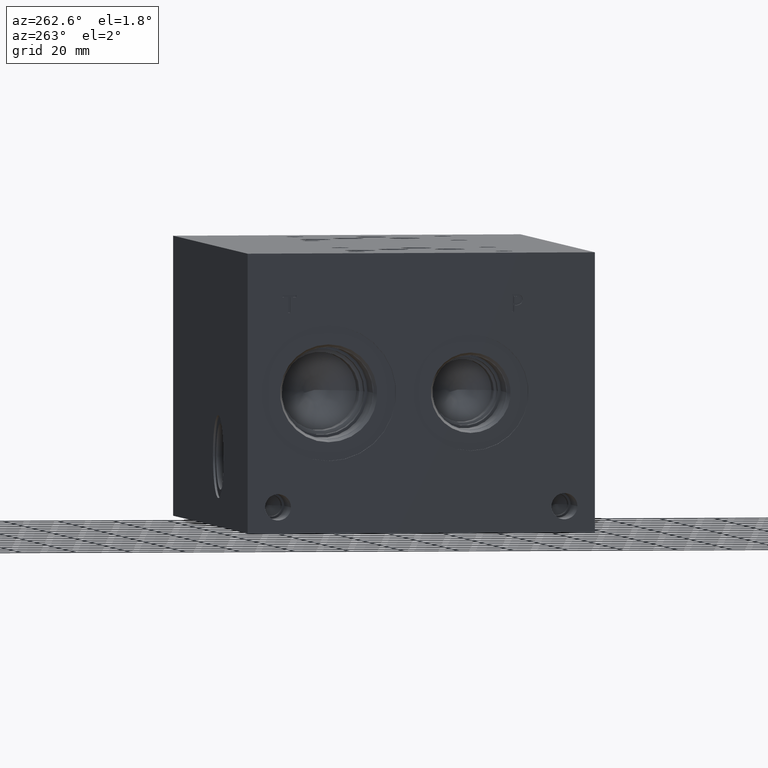
[diagram: clean part render]
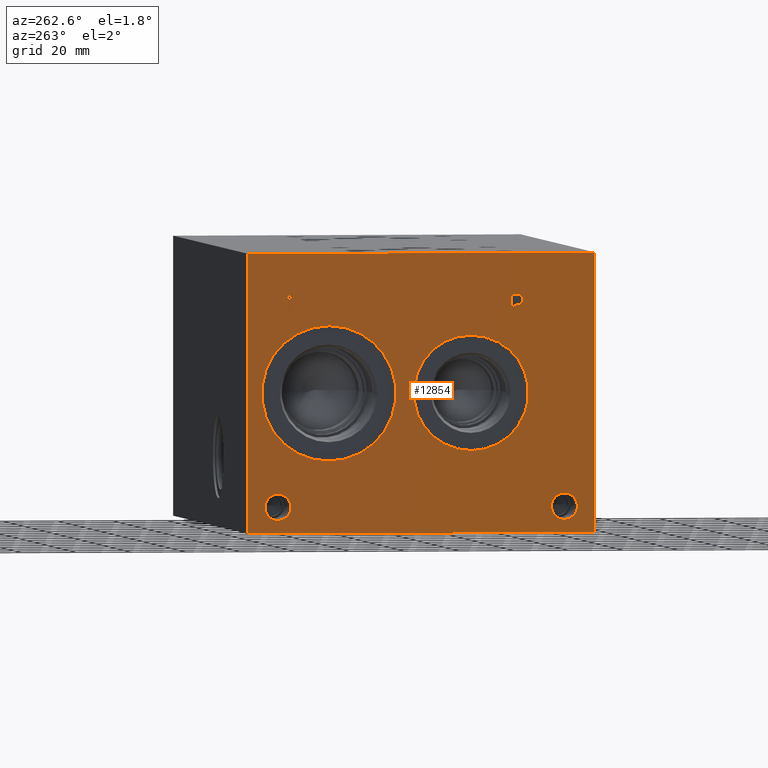
[diagram: same view with one face highlighted and labeled with its STEP entity id]
A machine part, auxiliary view. The second image highlights one B-rep face of the part: STEP entity #12854.
In plain terms, the highlighted planar face has unit normal (-1, 0, 0).
Its self-contained STEP definition (entity closure, byte-faithful):
#169=CIRCLE('',#13559,24.5618);
#170=CIRCLE('',#13560,24.5618);
#171=CIRCLE('',#13561,21.0185);
#172=CIRCLE('',#13562,21.0185);
#173=CIRCLE('',#13563,4.7625);
#174=CIRCLE('',#13564,4.7625);
#175=CIRCLE('',#13565,4.7625);
#176=CIRCLE('',#13566,4.7625);
#487=FACE_BOUND('',#1706,.T.);
#488=FACE_BOUND('',#1707,.T.);
#489=FACE_BOUND('',#1708,.T.);
#490=FACE_BOUND('',#1709,.T.);
#491=FACE_BOUND('',#1710,.T.);
#492=FACE_BOUND('',#1711,.T.);
#607=PLANE('',#13558);
#999=FACE_OUTER_BOUND('',#1705,.T.);
#1705=EDGE_LOOP('',(#8585,#8586,#8587,#8588));
#1706=EDGE_LOOP('',(#8589,#8590));
#1707=EDGE_LOOP('',(#8591,#8592));
#1708=EDGE_LOOP('',(#8593,#8594));
#1709=EDGE_LOOP('',(#8595,#8596));
#1710=EDGE_LOOP('',(#8597,#8598,#8599,#8600,#8601,#8602,#8603,#8604));
#1711=EDGE_LOOP('',(#8605,#8606,#8607,#8608,#8609,#8610,#8611,#8612,#8613));
#2529=LINE('',#17643,#3736);
#2532=LINE('',#17649,#3739);
#2535=LINE('',#17655,#3742);
#2538=LINE('',#17661,#3745);
#2541=LINE('',#17667,#3748);
#2545=LINE('',#17710,#3752);
#2546=LINE('',#17712,#3753);
#2547=LINE('',#17714,#3754);
#2548=LINE('',#17715,#3755);
#2549=LINE('',#17734,#3756);
#2550=LINE('',#17736,#3757);
#2551=LINE('',#17738,#3758);
#2552=LINE('',#17740,#3759);
#2553=LINE('',#17742,#3760);
#2554=LINE('',#17744,#3761);
#2555=LINE('',#17746,#3762);
#2556=LINE('',#17747,#3763);
#3736=VECTOR('',#14478,10.);
#3739=VECTOR('',#14483,10.);
#3742=VECTOR('',#14488,10.);
#3745=VECTOR('',#14493,10.);
#3748=VECTOR('',#14498,10.);
#3752=VECTOR('',#14506,10.);
#3753=VECTOR('',#14507,10.);
#3754=VECTOR('',#14508,10.);
#3755=VECTOR('',#14509,10.);
#3756=VECTOR('',#14526,10.);
#3757=VECTOR('',#14527,10.);
#3758=VECTOR('',#14528,10.);
#3759=VECTOR('',#14529,10.);
#3760=VECTOR('',#14530,10.);
#3761=VECTOR('',#14531,10.);
#3762=VECTOR('',#14532,10.);
#3763=VECTOR('',#14533,10.);
#4907=B_SPLINE_CURVE_WITH_KNOTS('',2,(#17610,#17611,#17612,#17613),
 .UNSPECIFIED.,.F.,.F.,(3,1,3),(0.,1.,2.),.UNSPECIFIED.);
#4909=B_SPLINE_CURVE_WITH_KNOTS('',2,(#17631,#17632,#17633,#17634),
 .UNSPECIFIED.,.F.,.F.,(3,1,3),(0.,1.,2.),.UNSPECIFIED.);
#4911=B_SPLINE_CURVE_WITH_KNOTS('',2,(#17680,#17681,#17682,#17683),
 .UNSPECIFIED.,.F.,.F.,(3,1,3),(0.,1.,2.),.UNSPECIFIED.);
#4913=B_SPLINE_CURVE_WITH_KNOTS('',2,(#17698,#17699,#17700,#17701),
 .UNSPECIFIED.,.F.,.F.,(3,1,3),(0.,1.,2.),.UNSPECIFIED.);
#5299=VERTEX_POINT('',#17608);
#5300=VERTEX_POINT('',#17609);
#5303=VERTEX_POINT('',#17630);
#5305=VERTEX_POINT('',#17642);
#5307=VERTEX_POINT('',#17648);
#5309=VERTEX_POINT('',#17654);
#5311=VERTEX_POINT('',#17660);
#5313=VERTEX_POINT('',#17666);
#5315=VERTEX_POINT('',#17679);
#5317=VERTEX_POINT('',#17708);
#5318=VERTEX_POINT('',#17709);
#5319=VERTEX_POINT('',#17711);
#5320=VERTEX_POINT('',#17713);
#5321=VERTEX_POINT('',#17716);
#5322=VERTEX_POINT('',#17717);
#5323=VERTEX_POINT('',#17720);
#5324=VERTEX_POINT('',#17721);
#5325=VERTEX_POINT('',#17724);
#5326=VERTEX_POINT('',#17725);
#5327=VERTEX_POINT('',#17728);
#5328=VERTEX_POINT('',#17729);
#5329=VERTEX_POINT('',#17732);
#5330=VERTEX_POINT('',#17733);
#5331=VERTEX_POINT('',#17735);
#5332=VERTEX_POINT('',#17737);
#5333=VERTEX_POINT('',#17739);
#5334=VERTEX_POINT('',#17741);
#5335=VERTEX_POINT('',#17743);
#5336=VERTEX_POINT('',#17745);
#6610=EDGE_CURVE('',#5299,#5300,#4907,.T.);
#6614=EDGE_CURVE('',#5303,#5299,#4909,.T.);
#6617=EDGE_CURVE('',#5305,#5303,#2529,.T.);
#6620=EDGE_CURVE('',#5307,#5305,#2532,.T.);
#6623=EDGE_CURVE('',#5309,#5307,#2535,.T.);
#6626=EDGE_CURVE('',#5311,#5309,#2538,.T.);
#6629=EDGE_CURVE('',#5313,#5311,#2541,.T.);
#6632=EDGE_CURVE('',#5315,#5313,#4911,.T.);
#6635=EDGE_CURVE('',#5300,#5315,#4913,.T.);
#6637=EDGE_CURVE('',#5317,#5318,#2545,.T.);
#6638=EDGE_CURVE('',#5318,#5319,#2546,.T.);
#6639=EDGE_CURVE('',#5320,#5319,#2547,.T.);
#6640=EDGE_CURVE('',#5317,#5320,#2548,.T.);
#6641=EDGE_CURVE('',#5321,#5322,#169,.T.);
#6642=EDGE_CURVE('',#5322,#5321,#170,.T.);
#6643=EDGE_CURVE('',#5323,#5324,#171,.T.);
#6644=EDGE_CURVE('',#5324,#5323,#172,.T.);
#6645=EDGE_CURVE('',#5325,#5326,#173,.T.);
#6646=EDGE_CURVE('',#5326,#5325,#174,.T.);
#6647=EDGE_CURVE('',#5327,#5328,#175,.T.);
#6648=EDGE_CURVE('',#5328,#5327,#176,.T.);
#6649=EDGE_CURVE('',#5329,#5330,#2549,.T.);
#6650=EDGE_CURVE('',#5330,#5331,#2550,.T.);
#6651=EDGE_CURVE('',#5331,#5332,#2551,.T.);
#6652=EDGE_CURVE('',#5332,#5333,#2552,.T.);
#6653=EDGE_CURVE('',#5333,#5334,#2553,.T.);
#6654=EDGE_CURVE('',#5334,#5335,#2554,.T.);
#6655=EDGE_CURVE('',#5335,#5336,#2555,.T.);
#6656=EDGE_CURVE('',#5336,#5329,#2556,.T.);
#8585=ORIENTED_EDGE('',*,*,#6637,.T.);
#8586=ORIENTED_EDGE('',*,*,#6638,.T.);
#8587=ORIENTED_EDGE('',*,*,#6639,.F.);
#8588=ORIENTED_EDGE('',*,*,#6640,.F.);
#8589=ORIENTED_EDGE('',*,*,#6641,.T.);
#8590=ORIENTED_EDGE('',*,*,#6642,.T.);
#8591=ORIENTED_EDGE('',*,*,#6643,.T.);
#8592=ORIENTED_EDGE('',*,*,#6644,.T.);
#8593=ORIENTED_EDGE('',*,*,#6645,.T.);
#8594=ORIENTED_EDGE('',*,*,#6646,.T.);
#8595=ORIENTED_EDGE('',*,*,#6647,.T.);
#8596=ORIENTED_EDGE('',*,*,#6648,.T.);
#8597=ORIENTED_EDGE('',*,*,#6649,.T.);
#8598=ORIENTED_EDGE('',*,*,#6650,.T.);
#8599=ORIENTED_EDGE('',*,*,#6651,.T.);
#8600=ORIENTED_EDGE('',*,*,#6652,.T.);
#8601=ORIENTED_EDGE('',*,*,#6653,.T.);
#8602=ORIENTED_EDGE('',*,*,#6654,.T.);
#8603=ORIENTED_EDGE('',*,*,#6655,.T.);
#8604=ORIENTED_EDGE('',*,*,#6656,.T.);
#8605=ORIENTED_EDGE('',*,*,#6610,.T.);
#8606=ORIENTED_EDGE('',*,*,#6635,.T.);
#8607=ORIENTED_EDGE('',*,*,#6632,.T.);
#8608=ORIENTED_EDGE('',*,*,#6629,.T.);
#8609=ORIENTED_EDGE('',*,*,#6626,.T.);
#8610=ORIENTED_EDGE('',*,*,#6623,.T.);
#8611=ORIENTED_EDGE('',*,*,#6620,.T.);
#8612=ORIENTED_EDGE('',*,*,#6617,.T.);
#8613=ORIENTED_EDGE('',*,*,#6614,.T.);
#12854=ADVANCED_FACE('',(#999,#487,#488,#489,#490,#491,#492),#607,.T.);
#13558=AXIS2_PLACEMENT_3D('',#17707,#14504,#14505);
#13559=AXIS2_PLACEMENT_3D('',#17718,#14510,#14511);
#13560=AXIS2_PLACEMENT_3D('',#17719,#14512,#14513);
#13561=AXIS2_PLACEMENT_3D('',#17722,#14514,#14515);
#13562=AXIS2_PLACEMENT_3D('',#17723,#14516,#14517);
#13563=AXIS2_PLACEMENT_3D('',#17726,#14518,#14519);
#13564=AXIS2_PLACEMENT_3D('',#17727,#14520,#14521);
#13565=AXIS2_PLACEMENT_3D('',#17730,#14522,#14523);
#13566=AXIS2_PLACEMENT_3D('',#17731,#14524,#14525);
#14478=DIRECTION('',(0.,-1.,0.));
#14483=DIRECTION('',(0.,-2.79741238752512E-15,1.));
#14488=DIRECTION('',(0.,1.,0.));
#14493=DIRECTION('',(0.,1.876090699025E-15,-1.));
#14498=DIRECTION('',(0.,1.,0.));
#14504=DIRECTION('center_axis',(-1.,0.,0.));
#14505=DIRECTION('ref_axis',(0.,-1.,0.));
#14506=DIRECTION('',(0.,-1.,0.));
#14507=DIRECTION('',(0.,0.,1.));
#14508=DIRECTION('',(0.,-1.,0.));
#14509=DIRECTION('',(0.,0.,1.));
#14510=DIRECTION('center_axis',(1.,0.,0.));
#14511=DIRECTION('ref_axis',(0.,0.,1.));
#14512=DIRECTION('center_axis',(1.,0.,0.));
#14513=DIRECTION('ref_axis',(0.,0.,1.));
#14514=DIRECTION('center_axis',(1.,0.,0.));
#14515=DIRECTION('ref_axis',(0.,0.,1.));
#14516=DIRECTION('center_axis',(1.,0.,0.));
#14517=DIRECTION('ref_axis',(0.,0.,1.));
#14518=DIRECTION('center_axis',(1.,0.,0.));
#14519=DIRECTION('ref_axis',(0.,1.,0.));
#14520=DIRECTION('center_axis',(1.,0.,0.));
#14521=DIRECTION('ref_axis',(0.,1.,0.));
#14522=DIRECTION('center_axis',(1.,0.,0.));
#14523=DIRECTION('ref_axis',(0.,1.,0.));
#14524=DIRECTION('center_axis',(1.,0.,0.));
#14525=DIRECTION('ref_axis',(0.,1.,0.));
#14526=DIRECTION('',(0.,1.,0.));
#14527=DIRECTION('',(0.,-3.17280044688052E-15,1.));
#14528=DIRECTION('',(0.,1.,0.));
#14529=DIRECTION('',(0.,0.,1.));
#14530=DIRECTION('',(0.,-1.,-3.47984565141734E-15));
#14531=DIRECTION('',(0.,0.,-1.));
#14532=DIRECTION('',(0.,1.,8.33818088455555E-15));
#14533=DIRECTION('',(0.,3.17280044688052E-15,-1.));
#17608=CARTESIAN_POINT('',(0.,27.1509327976406,86.1225181439707));
#17609=CARTESIAN_POINT('',(0.,26.394490345468,84.6044873726039));
#17610=CARTESIAN_POINT('Ctrl Pts',(0.,27.1509327976406,86.1225181439707));
#17611=CARTESIAN_POINT('Ctrl Pts',(0.,26.7958679731514,85.8806623939564));
#17612=CARTESIAN_POINT('Ctrl Pts',(0.,26.394490345468,85.1345116758269));
#17613=CARTESIAN_POINT('Ctrl Pts',(0.,26.394490345468,84.6044873726039));
#17630=CARTESIAN_POINT('',(0.,28.8130478456117,86.5187499046326));
#17631=CARTESIAN_POINT('Ctrl Pts',(0.,28.8130478456117,86.5187499046326));
#17632=CARTESIAN_POINT('Ctrl Pts',(0.,28.2470024732376,86.5187499046326));
#17633=CARTESIAN_POINT('Ctrl Pts',(0.,27.454538951914,86.3334986918556));
#17634=CARTESIAN_POINT('Ctrl Pts',(0.,27.1509327976406,86.1225181439707));
#17642=CARTESIAN_POINT('',(0.,30.4082666223022,86.5187499046326));
#17643=CARTESIAN_POINT('',(0.,78.7041333111511,86.5187499046326));
#17648=CARTESIAN_POINT('',(0.,30.4082666223022,80.16875));
#17649=CARTESIAN_POINT('',(0.,30.4082666223023,40.0843749999999));
#17654=CARTESIAN_POINT('',(0.,29.5643444307627,80.16875));
#17655=CARTESIAN_POINT('',(0.,78.2821722153814,80.16875));
#17660=CARTESIAN_POINT('',(0.,29.5643444307627,82.5358488299279));
#17661=CARTESIAN_POINT('',(0.,29.5643444307628,41.2679244149638));
#17666=CARTESIAN_POINT('',(0.,28.8490689147628,82.5358488299279));
#17667=CARTESIAN_POINT('',(0.,77.9245344573814,82.5358488299279));
#17679=CARTESIAN_POINT('',(0.,26.9502439837989,83.1945198086904));
#17680=CARTESIAN_POINT('Ctrl Pts',(0.,26.9502439837989,83.1945198086904));
#17681=CARTESIAN_POINT('Ctrl Pts',(0.,27.2795794731802,82.8703301863307));
#17682=CARTESIAN_POINT('Ctrl Pts',(0.,28.1698144679139,82.5358488299279));
#17683=CARTESIAN_POINT('Ctrl Pts',(0.,28.8490689147628,82.5358488299279));
#17698=CARTESIAN_POINT('Ctrl Pts',(0.,26.394490345468,84.6044873726039));
#17699=CARTESIAN_POINT('Ctrl Pts',(0.,26.394490345468,84.1928180108774));
#17700=CARTESIAN_POINT('Ctrl Pts',(0.,26.6878047656982,83.4518131597695));
#17701=CARTESIAN_POINT('Ctrl Pts',(0.,26.9502439837989,83.1945198086904));
#17707=CARTESIAN_POINT('Origin',(0.,127.,0.));
#17708=CARTESIAN_POINT('',(0.,127.,0.));
#17709=CARTESIAN_POINT('',(0.,0.,0.));
#17710=CARTESIAN_POINT('',(0.,127.,0.));
#17711=CARTESIAN_POINT('',(0.,0.,101.6));
#17712=CARTESIAN_POINT('',(0.,0.,0.));
#17713=CARTESIAN_POINT('',(0.,127.,101.6));
#17714=CARTESIAN_POINT('',(0.,127.,101.6));
#17715=CARTESIAN_POINT('',(0.,127.,0.));
#17716=CARTESIAN_POINT('',(0.,97.2566,75.3618));
#17717=CARTESIAN_POINT('',(6.93889390390723E-17,97.2566,26.2382));
#17718=CARTESIAN_POINT('Origin',(0.,97.2566,50.8));
#17719=CARTESIAN_POINT('Origin',(0.,97.2566,50.8));
#17720=CARTESIAN_POINT('',(0.,45.2882,71.8185));
#17721=CARTESIAN_POINT('',(0.,45.2882,29.7815));
#17722=CARTESIAN_POINT('Origin',(0.,45.2882,50.8));
#17723=CARTESIAN_POINT('Origin',(0.,45.2882,50.8));
#17724=CARTESIAN_POINT('',(0.,15.8877,9.52500000000001));
#17725=CARTESIAN_POINT('',(0.,6.3627,9.52500000000001));
#17726=CARTESIAN_POINT('Origin',(0.,11.1252,9.52500000000001));
#17727=CARTESIAN_POINT('Origin',(0.,11.1252,9.52500000000001));
#17728=CARTESIAN_POINT('',(0.,120.6373,9.52500000000001));
#17729=CARTESIAN_POINT('',(0.,111.1123,9.52500000000001));
#17730=CARTESIAN_POINT('Origin',(0.,115.8748,9.52500000000001));
#17731=CARTESIAN_POINT('Origin',(0.,115.8748,9.52500000000001));
#17732=CARTESIAN_POINT('',(0.,111.330834728547,80.16875));
#17733=CARTESIAN_POINT('',(0.,112.174756920086,80.16875));
#17734=CARTESIAN_POINT('',(0.,119.165417364273,80.16875));
#17735=CARTESIAN_POINT('',(0.,112.174756920086,85.7674533194816));
#17736=CARTESIAN_POINT('',(0.,112.174756920087,40.084375));
#17737=CARTESIAN_POINT('',(0.,114.305145867022,85.7674533194816));
#17738=CARTESIAN_POINT('',(0.,119.587378460043,85.7674533194816));
#17739=CARTESIAN_POINT('',(0.,114.305145867022,86.5187499046326));
#17740=CARTESIAN_POINT('',(0.,114.305145867022,42.8837266597408));
#17741=CARTESIAN_POINT('',(0.,109.200445781612,86.5187499046326));
#17742=CARTESIAN_POINT('',(0.,120.652572933511,86.5187499046326));
#17743=CARTESIAN_POINT('',(0.,109.200445781612,85.7674533194815));
#17744=CARTESIAN_POINT('',(0.,109.200445781612,43.2593749523163));
#17745=CARTESIAN_POINT('',(0.,111.330834728547,85.7674533194816));
#17746=CARTESIAN_POINT('',(0.,118.100222890806,85.7674533194816));
#17747=CARTESIAN_POINT('',(0.,111.330834728547,42.8837266597408));